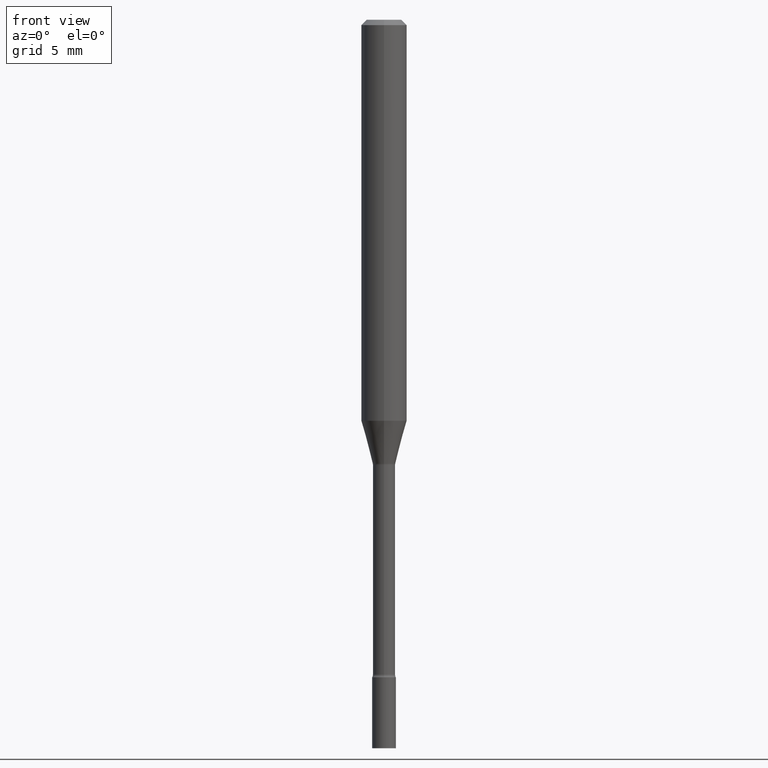
[diagram: clean part render]
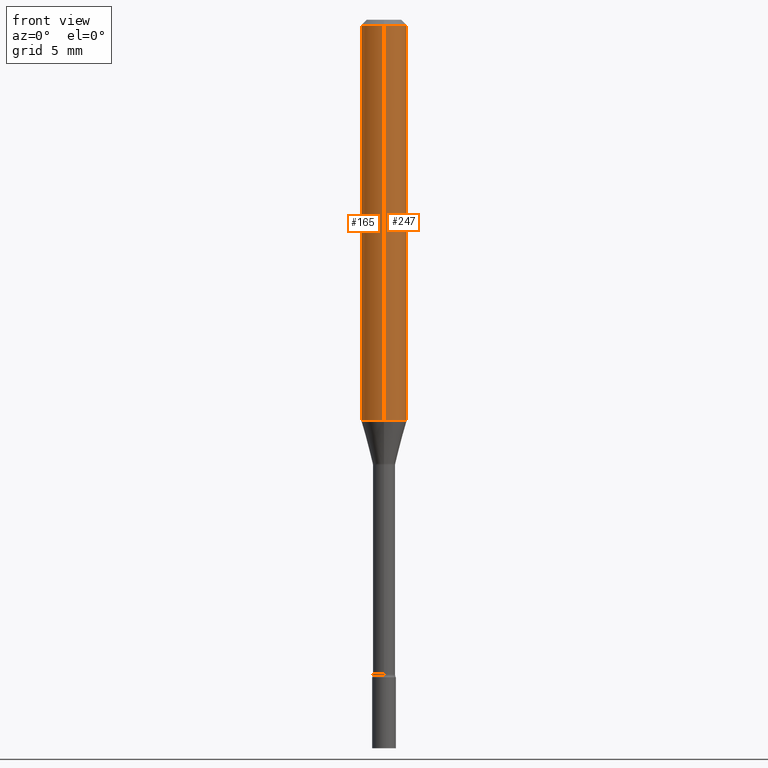
[diagram: same view with one multi-face feature highlighted, each face labeled with its STEP entity id]
A machine part, front view. The highlighted faces form ONE feature: a constant-radius fillet chain: 2 tangent blend faces with common blend radius 1.5875 mm. The faces share edges in the B-rep.
Their STEP definitions:
[1] entity #247 (Cylinder):
#5 = CIRCLE ( 'NONE', #220, 0.06250000000000000000 ) ;
#22 = CARTESIAN_POINT ( 'NONE',  ( -4.364351673553646016E-16, -0.06250000000000383027, -1.100760976698174298 ) ) ;
#36 = DIRECTION ( 'NONE',  ( -2.445446564230640658E-29, 3.491513190587917155E-15, 1.000000000000000000 ) ) ;
#79 = VERTEX_POINT ( 'NONE', #145 ) ;
#94 = EDGE_CURVE ( 'NONE', #502, #79, #104, .T. ) ;
#99 = DIRECTION ( 'NONE',  ( -6.982962677686265922E-15, -1.000000000000000000, 3.483106191921935554E-15 ) ) ;
#104 = LINE ( 'NONE', #395, #478 ) ;
#124 = ORIENTED_EDGE ( 'NONE', *, *, #480, .T. ) ;
#130 = ORIENTED_EDGE ( 'NONE', *, *, #94, .F. ) ;
#132 = CARTESIAN_POINT ( 'NONE',  ( 2.691852148505715417E-29, -3.843321469826115367E-15, -1.100760976698174520 ) ) ;
#145 = CARTESIAN_POINT ( 'NONE',  ( -4.364351673553912750E-16, -0.06250000000000005551, -0.01499999999999981209 ) ) ;
#155 = CIRCLE ( 'NONE', #508, 0.06250000000000000000 ) ;
#158 = DIRECTION ( 'NONE',  ( -6.982962677686265922E-15, -1.000000000000000000, 3.491513190587917155E-15 ) ) ;
#174 = CARTESIAN_POINT ( 'NONE',  ( 4.440892098500625669E-16, 0.06250000000000000000, -2.182195744117448222E-16 ) ) ;
#179 = DIRECTION ( 'NONE',  ( -6.982962677686265922E-15, -1.000000000000000000, 4.370956789862821150E-15 ) ) ;
#220 = AXIS2_PLACEMENT_3D ( 'NONE', #293, #457, #99 ) ;
#221 = AXIS2_PLACEMENT_3D ( 'NONE', #491, #372, #158 ) ;
#245 = CYLINDRICAL_SURFACE ( 'NONE', #221, 0.06250000000000000000 ) ;
#247 = ADVANCED_FACE ( 'NONE', ( #362 ), #245, .T. ) ;
#257 = VERTEX_POINT ( 'NONE', #444 ) ;
#259 = EDGE_LOOP ( 'NONE', ( #417, #124, #365, #130 ) ) ;
#293 = CARTESIAN_POINT ( 'NONE',  ( 3.668169846345967940E-31, -5.237269785881886382E-17, -0.01500000000000003067 ) ) ;
#362 = FACE_OUTER_BOUND ( 'NONE', #259, .T. ) ;
#365 = ORIENTED_EDGE ( 'NONE', *, *, #485, .F. ) ;
#372 = DIRECTION ( 'NONE',  ( -2.445446564230640658E-29, 3.491513190587917155E-15, 1.000000000000000000 ) ) ;
#377 = LINE ( 'NONE', #174, #436 ) ;
#395 = CARTESIAN_POINT ( 'NONE',  ( -4.364351673553916201E-16, -0.06250000000000000000, 2.182195744117448222E-16 ) ) ;
#417 = ORIENTED_EDGE ( 'NONE', *, *, #515, .T. ) ;
#424 = VERTEX_POINT ( 'NONE', #501 ) ;
#436 = VECTOR ( 'NONE', #463, 39.37007874015748143 ) ;
#444 = CARTESIAN_POINT ( 'NONE',  ( 4.440892098500897333E-16, 0.06249999999999995837, -0.01500000000000024751 ) ) ;
#450 = DIRECTION ( 'NONE',  ( -2.445446564230640658E-29, 3.491513190587917155E-15, 1.000000000000000000 ) ) ;
#457 = DIRECTION ( 'NONE',  ( -2.445446564230640658E-29, 3.491513190587917155E-15, 1.000000000000000000 ) ) ;
#463 = DIRECTION ( 'NONE',  ( -2.445446564230640658E-29, 3.491513190587917155E-15, 1.000000000000000000 ) ) ;
#478 = VECTOR ( 'NONE', #36, 39.37007874015748143 ) ;
#480 = EDGE_CURVE ( 'NONE', #424, #257, #377, .T. ) ;
#485 = EDGE_CURVE ( 'NONE', #79, #257, #5, .T. ) ;
#491 = CARTESIAN_POINT ( 'NONE',  ( 0.000000000000000000, 0.000000000000000000, 0.000000000000000000 ) ) ;
#501 = CARTESIAN_POINT ( 'NONE',  ( 4.440892098500895360E-16, 0.06249999999999616279, -1.100760976698174742 ) ) ;
#502 = VERTEX_POINT ( 'NONE', #22 ) ;
#508 = AXIS2_PLACEMENT_3D ( 'NONE', #132, #450, #179 ) ;
#515 = EDGE_CURVE ( 'NONE', #502, #424, #155, .T. ) ;
[2] entity #165 (Cylinder):
#1 = ORIENTED_EDGE ( 'NONE', *, *, #193, .T. ) ;
#4 = DIRECTION ( 'NONE',  ( -6.982962677686265922E-15, -1.000000000000000000, 4.370956789862821150E-15 ) ) ;
#22 = CARTESIAN_POINT ( 'NONE',  ( -4.364351673553646016E-16, -0.06250000000000383027, -1.100760976698174298 ) ) ;
#36 = DIRECTION ( 'NONE',  ( -2.445446564230640658E-29, 3.491513190587917155E-15, 1.000000000000000000 ) ) ;
#79 = VERTEX_POINT ( 'NONE', #145 ) ;
#94 = EDGE_CURVE ( 'NONE', #502, #79, #104, .T. ) ;
#104 = LINE ( 'NONE', #395, #478 ) ;
#122 = EDGE_CURVE ( 'NONE', #257, #79, #326, .T. ) ;
#145 = CARTESIAN_POINT ( 'NONE',  ( -4.364351673553912750E-16, -0.06250000000000005551, -0.01499999999999981209 ) ) ;
#165 = ADVANCED_FACE ( 'NONE', ( #185 ), #520, .T. ) ;
#169 = CIRCLE ( 'NONE', #474, 0.06250000000000000000 ) ;
#174 = CARTESIAN_POINT ( 'NONE',  ( 4.440892098500625669E-16, 0.06250000000000000000, -2.182195744117448222E-16 ) ) ;
#185 = FACE_OUTER_BOUND ( 'NONE', #242, .T. ) ;
#187 = DIRECTION ( 'NONE',  ( -6.982962677686265922E-15, -1.000000000000000000, 3.483106191921935554E-15 ) ) ;
#193 = EDGE_CURVE ( 'NONE', #424, #502, #169, .T. ) ;
#231 = DIRECTION ( 'NONE',  ( -2.445446564230640658E-29, 3.491513190587917155E-15, 1.000000000000000000 ) ) ;
#235 = CARTESIAN_POINT ( 'NONE',  ( 0.000000000000000000, 0.000000000000000000, 0.000000000000000000 ) ) ;
#238 = DIRECTION ( 'NONE',  ( -2.445446564230640658E-29, 3.491513190587917155E-15, 1.000000000000000000 ) ) ;
#242 = EDGE_LOOP ( 'NONE', ( #303, #1, #445, #426 ) ) ;
#257 = VERTEX_POINT ( 'NONE', #444 ) ;
#270 = CARTESIAN_POINT ( 'NONE',  ( 2.691852148505715417E-29, -3.843321469826115367E-15, -1.100760976698174520 ) ) ;
#303 = ORIENTED_EDGE ( 'NONE', *, *, #480, .F. ) ;
#319 = AXIS2_PLACEMENT_3D ( 'NONE', #235, #477, #437 ) ;
#326 = CIRCLE ( 'NONE', #428, 0.06250000000000000000 ) ;
#377 = LINE ( 'NONE', #174, #436 ) ;
#395 = CARTESIAN_POINT ( 'NONE',  ( -4.364351673553916201E-16, -0.06250000000000000000, 2.182195744117448222E-16 ) ) ;
#424 = VERTEX_POINT ( 'NONE', #501 ) ;
#426 = ORIENTED_EDGE ( 'NONE', *, *, #122, .F. ) ;
#428 = AXIS2_PLACEMENT_3D ( 'NONE', #517, #231, #187 ) ;
#436 = VECTOR ( 'NONE', #463, 39.37007874015748143 ) ;
#437 = DIRECTION ( 'NONE',  ( -6.982962677686265922E-15, -1.000000000000000000, 3.491513190587917155E-15 ) ) ;
#444 = CARTESIAN_POINT ( 'NONE',  ( 4.440892098500897333E-16, 0.06249999999999995837, -0.01500000000000024751 ) ) ;
#445 = ORIENTED_EDGE ( 'NONE', *, *, #94, .T. ) ;
#463 = DIRECTION ( 'NONE',  ( -2.445446564230640658E-29, 3.491513190587917155E-15, 1.000000000000000000 ) ) ;
#474 = AXIS2_PLACEMENT_3D ( 'NONE', #270, #238, #4 ) ;
#477 = DIRECTION ( 'NONE',  ( -2.445446564230640658E-29, 3.491513190587917155E-15, 1.000000000000000000 ) ) ;
#478 = VECTOR ( 'NONE', #36, 39.37007874015748143 ) ;
#480 = EDGE_CURVE ( 'NONE', #424, #257, #377, .T. ) ;
#501 = CARTESIAN_POINT ( 'NONE',  ( 4.440892098500895360E-16, 0.06249999999999616279, -1.100760976698174742 ) ) ;
#502 = VERTEX_POINT ( 'NONE', #22 ) ;
#517 = CARTESIAN_POINT ( 'NONE',  ( 3.668169846345967940E-31, -5.237269785881886382E-17, -0.01500000000000003067 ) ) ;
#520 = CYLINDRICAL_SURFACE ( 'NONE', #319, 0.06250000000000000000 ) ;